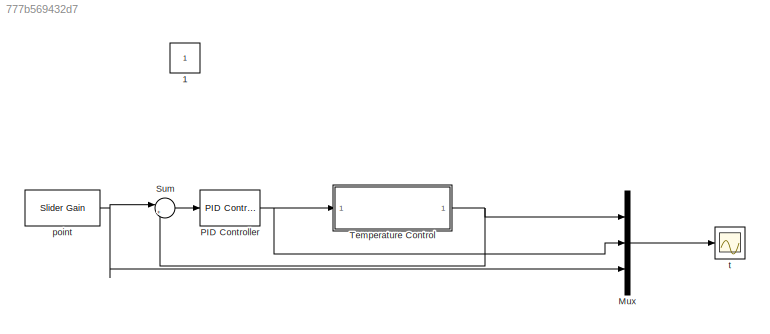
MODEL slx_777b569432d7
KIND model
CONFIG AbsTol = auto
CONFIG EnableMultiTasking = on
CONFIG FixedStep = auto
CONFIG MaxStep = auto
CONFIG MinStep = auto
CONFIG RelTol = 1e-3
CONFIG SampleTimeConstraint = Unconstrained
CONFIG SolverName = VariableStepAuto
CONFIG StartFcn = clear all
CONFIG StartTime = 0.0
CONFIG StopTime = 500
BLOCK [Constant] 1
  IOType = siggen
BLOCK [Mux] Mux
  DisplayOption = bar
  Inputs = 3
  Ports = [3, 1]
BLOCK [Reference] PID Controller  REF=slpidlib/PID Controller
  Ports = [1, 1]
  SourceBlock = slpidlib/PID Controller
  SourceProductBaseCode = SL
  SourceType = PID 1dof
BLOCK [Sum] Sum
  Inputs = |+-
  Ports = [2, 1]
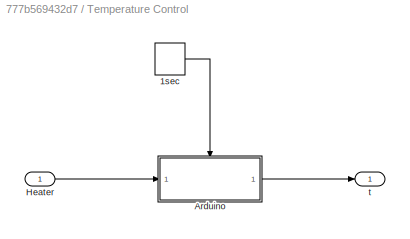
BLOCK [SubSystem] Temperature Control 
  Ports = [1, 1]
  RequestExecContextInheritance = off
BLOCK [DiscretePulseGenerator] Temperature Control /1sec
  Period = 1
  Ports = [0, 1]
  PulseType = Time based
  PulseWidth = 50
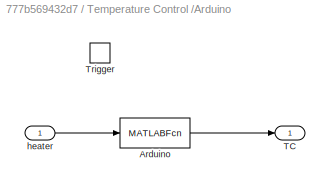
BLOCK [SubSystem] Temperature Control /Arduino
  Ports = [1, 1, 0, 1]
  RequestExecContextInheritance = off
  TreatAsAtomicUnit = on
BLOCK [MATLABFcn] Temperature Control /Arduino/Arduino
  MATLABFcn = heater
  Ports = [1, 1]
BLOCK [Outport] Temperature Control /Arduino/TC
  InitialOutput = 23
  VectorParamsAs1DForOutWhenUnconnected = off
BLOCK [TriggerPort] Temperature Control /Arduino/Trigger
  Ports = []
  StatesWhenEnabling = held
  VariantControl = Variant
BLOCK [Inport] Temperature Control /Arduino/heater
  LatchByDelayingOutsideSignal = on
BLOCK [Inport] Temperature Control /Heater
BLOCK [Outport] Temperature Control /t
  VectorParamsAs1DForOutWhenUnconnected = off
BLOCK [Reference] point  REF=simulink/Math
Operations/Slider
Gain
  Ports = [1, 1]
  SourceBlock = simulink/Math\nOperations/Slider\nGain
  SourceProductBaseCode = SL
  SourceType = Slider Gain
BLOCK [Scope] t
  Floating = off
  NumInputPorts = 1
  Ports = [1]
  ScopeSpecificationString = Simulink.scopes.TimeScopeBlockCfg('CurrentConfiguration', extmgr.ConfigurationSet(extmgr.Configuration('Core','General UI',true),extmgr.Configuration('Core','Source UI',true),extmgr.Configuration('Sources','WiredSimulink',true,'DataLoggingVariableName','ScopeData1'),extmgr.Configuration('Visuals','Time Domain',true,'SerializedDisplays',{struct('MinYLimReal','13.375','MaxYLimReal','109.625','YLabel...<+1432ch>
LINE Mux:1 -> t:1
NET PID Controller:1 -> Mux:2, Temperature Control :1
LINE Sum:1 -> PID Controller:1
LINE Temperature Control /1sec:1 -> Temperature Control /Arduino:trigger
LINE Temperature Control /Arduino/Arduino:1 -> Temperature Control /Arduino/TC:1
LINE Temperature Control /Arduino/heater:1 -> Temperature Control /Arduino/Arduino:1
LINE Temperature Control /Arduino:1 -> Temperature Control /t:1
LINE Temperature Control /Heater:1 -> Temperature Control /Arduino:1
NET Temperature Control :1 -> Mux:1, Sum:2
NET point:1 -> Mux:3, Sum:1
note: NET lines group one-source signal fan-out (src -> all destinations, sorted); 1:1 wires keep LINE
